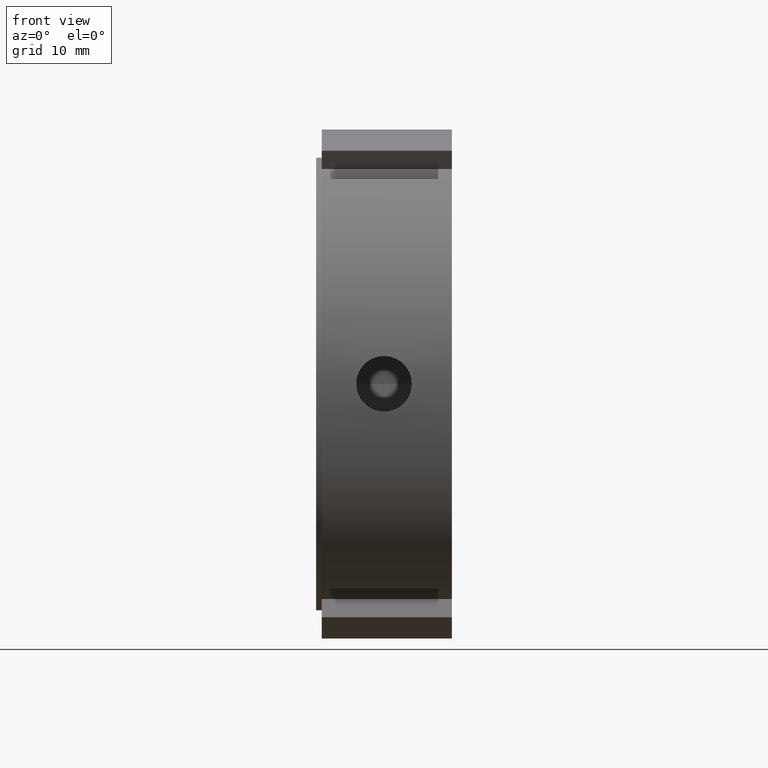
[diagram: clean part render]
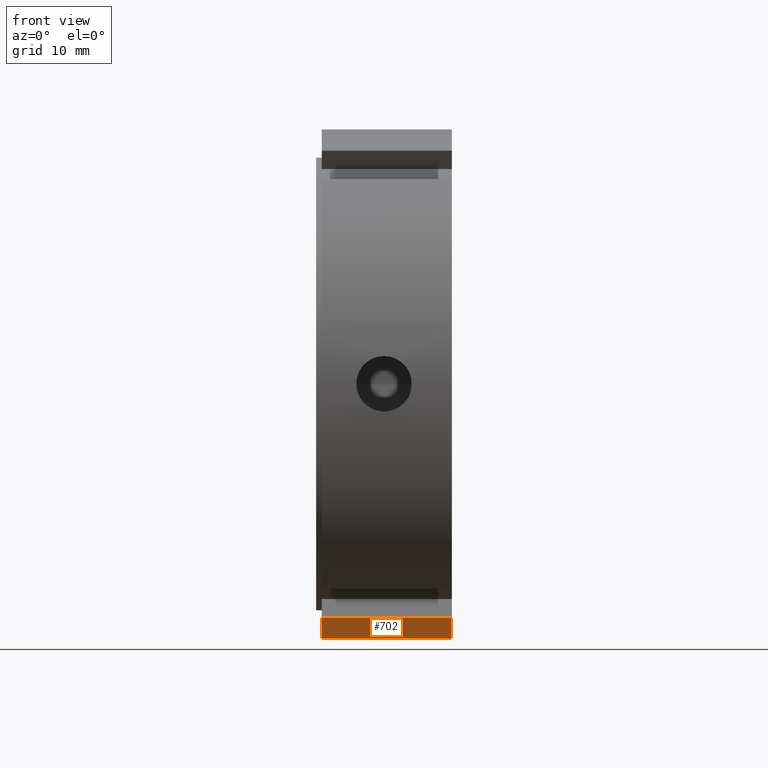
[diagram: same view with one face highlighted and labeled with its STEP entity id]
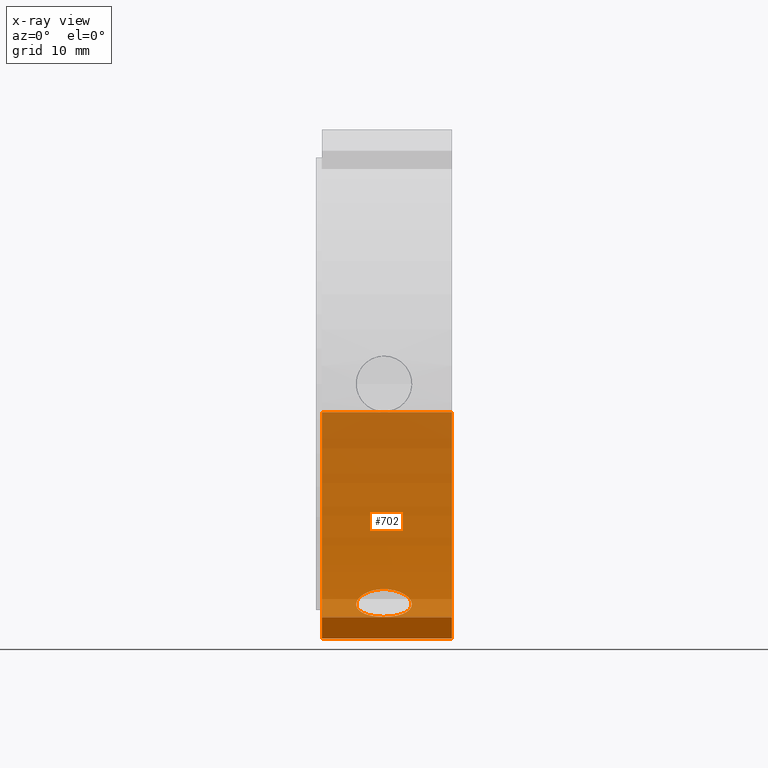
[diagram: x-ray of the same camera — body ghosted, the highlighted face saturated]
A machine part, front view. The second image highlights one B-rep face of the part: STEP entity #702.
The next image is the same camera in x-ray: the body ghosted, the highlighted face saturated — about 90% of this face is hidden behind the body in this view.
In plain terms, the highlighted cylindrical surface (partial cylindrical patch) has radius 22.5 mm, axis along (1, 0, 0).
Its self-contained STEP definition (entity closure, byte-faithful):
#262=CARTESIAN_POINT('',(11.999999999999996,-9.015276378037862,-20.614916731037077));
#263=VERTEX_POINT('',#262);
#270=CARTESIAN_POINT('',(11.999999999999996,22.360679774997894,-2.499999999999999));
#271=VERTEX_POINT('',#270);
#272=CARTESIAN_POINT('',(11.999999999999995,0.0,0.0));
#273=DIRECTION('',(1.0,0.0,0.0));
#274=DIRECTION('',(0.0,1.0,0.0));
#275=AXIS2_PLACEMENT_3D('',#272,#273,#274);
#276=CIRCLE('',#275,22.500000000000000);
#277=EDGE_CURVE('',#263,#271,#276,.T.);
#425=CARTESIAN_POINT('',(0.499999999999994,-9.015276378037859,-20.614916731037070));
#426=VERTEX_POINT('',#425);
#435=CARTESIAN_POINT('',(11.999999999999996,-9.015276378037862,-20.614916731037077));
#436=DIRECTION('',(-1.0,0.0,0.0));
#437=VECTOR('',#436,11.500000000000004);
#438=LINE('',#435,#437);
#439=EDGE_CURVE('',#263,#426,#438,.T.);
#602=CARTESIAN_POINT('',(5.999999999999995,9.053516860817028,-20.598151190116592));
#603=VERTEX_POINT('',#602);
#604=CARTESIAN_POINT('',(5.999999999999993,9.053516860817032,-20.598151190116592));
#605=CARTESIAN_POINT('',(6.308960393679367,9.053516860817032,-20.598151190116592));
#606=CARTESIAN_POINT('',(6.638344698398965,9.110565145808900,-20.573369000436607));
#607=CARTESIAN_POINT('',(7.243994563331622,9.340648295961579,-20.469934016331276));
#608=CARTESIAN_POINT('',(7.520281295008822,9.513485288215481,-20.390965372419110));
#609=CARTESIAN_POINT('',(7.956561687762607,9.908219934165674,-20.202105049204981));
#610=CARTESIAN_POINT('',(8.145728064719984,10.156482947758843,-20.079534812390708));
#611=CARTESIAN_POINT('',(8.396704023595195,10.693670687880291,-19.798668424092295));
#612=CARTESIAN_POINT('',(8.458499999999994,10.982433750883587,-19.640051031103280));
#613=CARTESIAN_POINT('',(8.458499999999994,11.517566249116403,-19.331092139196450));
#614=CARTESIAN_POINT('',(8.396704023595195,11.799314472428597,-19.160324687455493));
#615=CARTESIAN_POINT('',(8.145728064719982,12.311145769824934,-18.835539652057975));
#616=CARTESIAN_POINT('',(7.956561687762608,12.541426215450556,-18.681822693873347));
#617=CARTESIAN_POINT('',(7.520281295008820,12.902351376096028,-18.434402624333686));
#618=CARTESIAN_POINT('',(7.243994563331619,13.057158723953322,-18.324205720284191));
#619=CARTESIAN_POINT('',(6.638344698398965,13.261777622904916,-18.176665359321895));
#620=CARTESIAN_POINT('',(6.308960393679368,13.311763771225120,-18.139651190116584));
#621=CARTESIAN_POINT('',(5.691039606320620,13.311763771225120,-18.139651190116584));
#622=CARTESIAN_POINT('',(5.361655301601022,13.261777622904917,-18.176665359321891));
#623=CARTESIAN_POINT('',(4.756005436668367,13.057158723953320,-18.324205720284194));
#624=CARTESIAN_POINT('',(4.479718704991167,12.902351376096028,-18.434402624333686));
#625=CARTESIAN_POINT('',(4.043438312237379,12.541426215450556,-18.681822693873347));
#626=CARTESIAN_POINT('',(3.854271935280005,12.311145769824932,-18.835539652057975));
#627=CARTESIAN_POINT('',(3.603295976404795,11.799314472428597,-19.160324687455493));
#628=CARTESIAN_POINT('',(3.541499999999994,11.517566249116403,-19.331092139196450));
#629=CARTESIAN_POINT('',(3.541499999999994,10.982433750883589,-19.640051031103280));
#630=CARTESIAN_POINT('',(3.603295976404794,10.693670687880291,-19.798668424092295));
#631=CARTESIAN_POINT('',(3.854271935280003,10.156482947758844,-20.079534812390708));
#632=CARTESIAN_POINT('',(4.043438312237379,9.908219934165674,-20.202105049204985));
#633=CARTESIAN_POINT('',(4.479718704991166,9.513485288215481,-20.390965372419110));
#634=CARTESIAN_POINT('',(4.756005436668366,9.340648295961579,-20.469934016331276));
#635=CARTESIAN_POINT('',(5.361655301601022,9.110565145808900,-20.573369000436607));
#636=CARTESIAN_POINT('',(5.691039606320620,9.053516860817032,-20.598151190116592));
#637=CARTESIAN_POINT('',(5.999999999999995,9.053516860817032,-20.598151190116592));
#638=B_SPLINE_CURVE_WITH_KNOTS('',3,(#604,#605,#606,#607,#608,#609,#610,#611,#612,#613,#614,#615,#616,#617,#618,#619,#620,#621,#622,#623,#624,#625,#626,#627,#628,#629,#630,#631,#632,#633,#634,#635,#636,#637),.UNSPECIFIED.,.T.,.U.,(4,2,2,2,2,2,2,2,2,2,2,2,2,2,2,2,4),(0.0,0.092688118103812,0.185376236207624,0.278063903779674,0.370751571351723,0.463439238923773,0.556126906495822,0.648815024599634,0.741503142703447,0.834191260807259,0.926879378911071,1.019567046483120,1.112254714055170,1.204942381627219,1.297630049199269,1.390318167303081,1.483006285406893),.UNSPECIFIED.);
#639=EDGE_CURVE('',#603,#603,#638,.T.);
#675=CARTESIAN_POINT('',(6.249999999999995,0.0,0.0));
#676=DIRECTION('',(1.0,0.0,0.0));
#677=DIRECTION('',(0.0,1.0,0.0));
#678=AXIS2_PLACEMENT_3D('',#675,#676,#677);
#679=CYLINDRICAL_SURFACE('',#678,22.499999999999996);
#680=ORIENTED_EDGE('',*,*,#439,.T.);
#681=CARTESIAN_POINT('',(0.499999999999994,22.360679774997891,-2.499999999999999));
#682=VERTEX_POINT('',#681);
#683=CARTESIAN_POINT('',(0.499999999999994,0.0,0.0));
#684=DIRECTION('',(1.0,0.0,0.0));
#685=DIRECTION('',(0.0,1.0,0.0));
#686=AXIS2_PLACEMENT_3D('',#683,#684,#685);
#687=CIRCLE('',#686,22.499999999999993);
#688=EDGE_CURVE('',#426,#682,#687,.T.);
#689=ORIENTED_EDGE('',*,*,#688,.T.);
#690=CARTESIAN_POINT('',(0.499999999999994,22.360679774997894,-2.499999999999999));
#691=DIRECTION('',(1.0,0.0,0.0));
#692=VECTOR('',#691,11.500000000000004);
#693=LINE('',#690,#692);
#694=EDGE_CURVE('',#682,#271,#693,.T.);
#695=ORIENTED_EDGE('',*,*,#694,.T.);
#696=ORIENTED_EDGE('',*,*,#277,.F.);
#697=EDGE_LOOP('',(#680,#689,#695,#696));
#698=FACE_OUTER_BOUND('',#697,.T.);
#699=ORIENTED_EDGE('',*,*,#639,.T.);
#700=EDGE_LOOP('',(#699));
#701=FACE_BOUND('',#700,.T.);
#702=ADVANCED_FACE('',(#698,#701),#679,.T.);